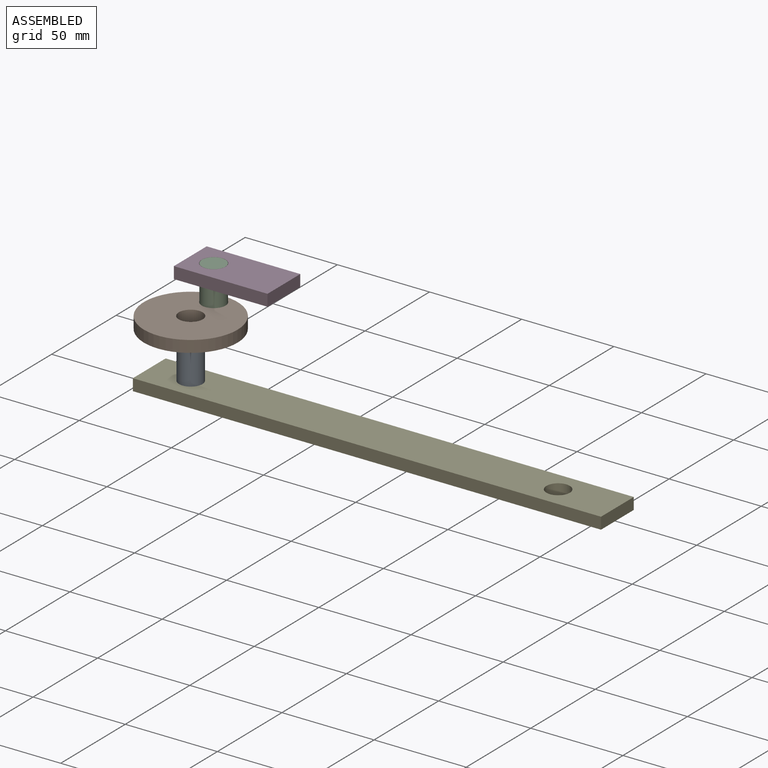
[diagram: assembled view]
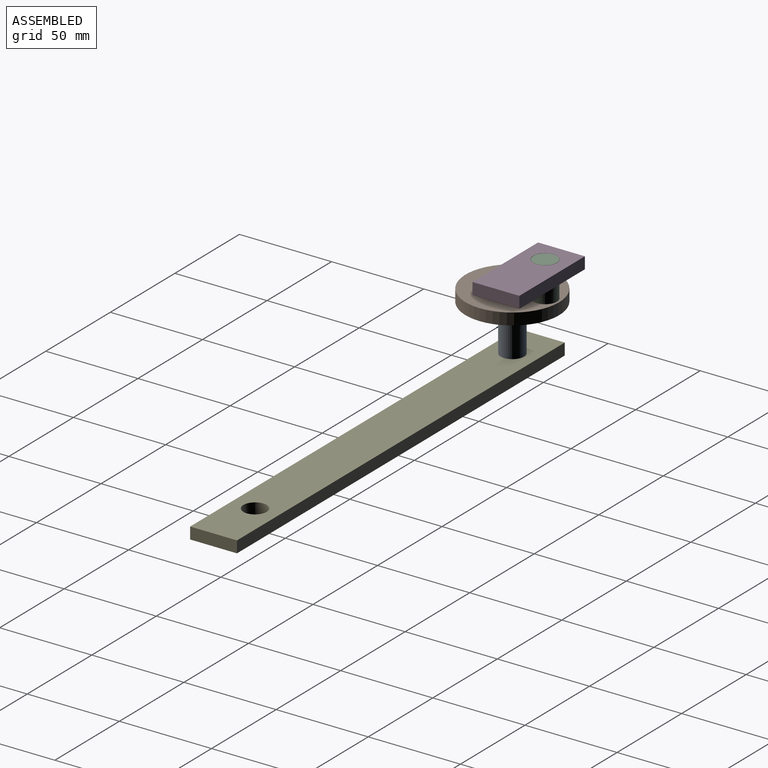
[diagram: assembled view, second angle]
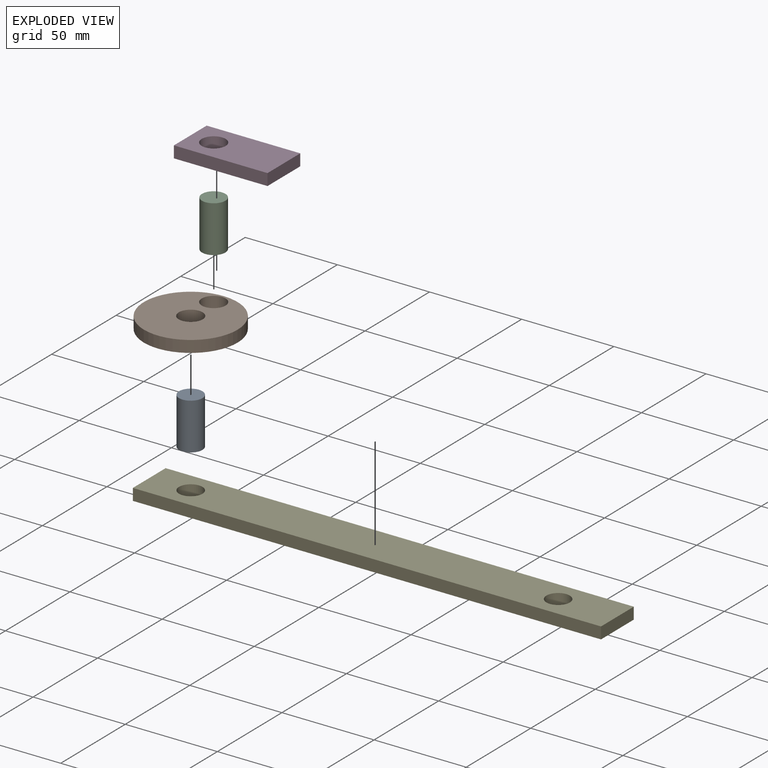
[diagram: exploded view]
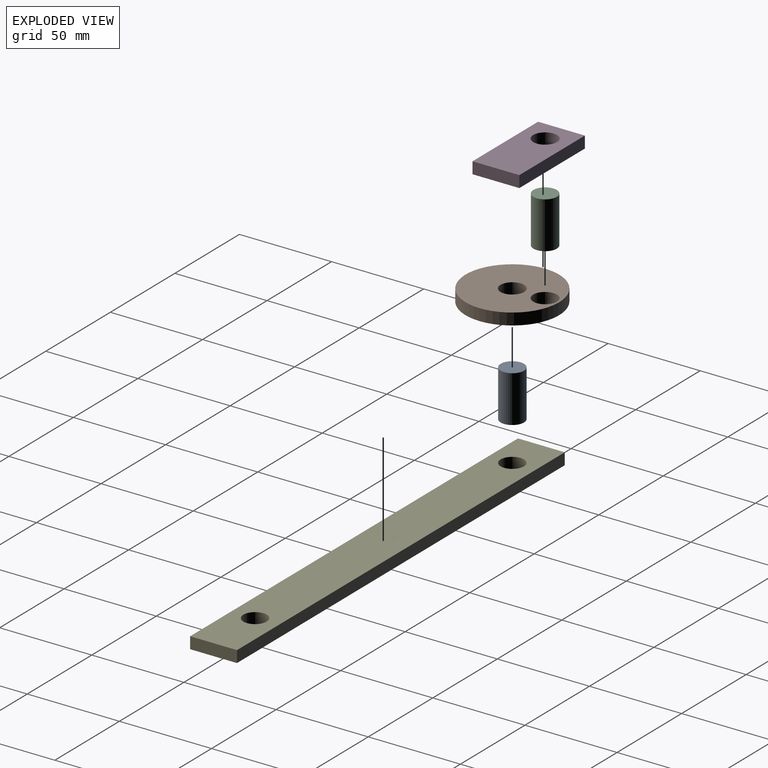
[diagram: exploded view, second angle]
ASSEMBLY  parts=5 mates=4
PART A: 3 faces, bbox 12.7x12.7x25.4 mm
  f0: cylinder r=6.35mm len=25.4mm, axis (0,0,-1), area 1013.4mm2, adj f1,f2
  f1: plane 12.7x12.7mm, normal (0,0,1), area 126.7mm2, adj f0
  f2: plane 12.7x12.7mm, normal (0,0,-1), area 126.7mm2, adj f0
PART B: 5 faces, bbox 50.8x50.8x6.4 mm
  f0: cylinder r=6.48mm len=12.95mm, axis (0,0,-1), area 258.4mm2, adj f3,f4
  f1: cylinder r=6.48mm len=12.95mm, axis (0,0,-1), area 258.4mm2, adj f3,f4
  f2: cylinder r=25.4mm len=50.8mm, axis (0,0,-1), area 1013.4mm2, adj f3,f4
  f3: plane 50.8x50.8mm, normal (0,0,1), area 1763.2mm2, adj f0,f1,f2
  f4: plane 50.8x50.8mm, normal (0,0,-1), area 1763.2mm2, adj f0,f1,f2
PART C: same geometry as A
PART D: 7 faces, bbox 50.8x25.4x6.4 mm
  f0: plane 25.4x6.35mm, normal (1,0,0), area 161.3mm2, adj f1,f3,f5,f6
  f1: plane 50.8x6.35mm, normal (0,1,0), area 322.6mm2, adj f0,f2,f5,f6
  f2: plane 25.4x6.35mm, normal (-1,0,0), area 161.3mm2, adj f1,f3,f5,f6
  f3: plane 50.8x6.35mm, normal (0,-1,0), area 322.6mm2, adj f0,f2,f5,f6
  f4: cylinder r=6.48mm len=12.95mm, axis (0,0,-1), area 258.4mm2, adj f5,f6
  f5: plane 50.8x25.4mm, normal (0,0,1), area 1158.5mm2, adj f0,f1,f2,f3,f4
  f6: plane 50.8x25.4mm, normal (0,0,-1), area 1158.5mm2, adj f0,f1,f2,f3,f4
PART E: 8 faces, bbox 254x25.4x6.4 mm
  f0: plane 25.4x6.35mm, normal (1,0,0), area 161.3mm2, adj f1,f4,f6,f7
  f1: plane 254x6.35mm, normal (0,1,0), area 1612.9mm2, adj f0,f2,f6,f7
  f2: plane 25.4x6.35mm, normal (-1,0,0), area 161.3mm2, adj f1,f4,f6,f7
  f3: cylinder r=6.35mm len=12.7mm, axis (0,0,-1), area 253.4mm2, adj f6,f7
  f4: plane 254x6.35mm, normal (0,-1,0), area 1612.9mm2, adj f0,f2,f6,f7
  f5: cylinder r=6.35mm len=12.7mm, axis (0,0,-1), area 253.4mm2, adj f6,f7
  f6: plane 254x25.4mm, normal (0,0,1), area 6198.2mm2, adj f0,f1,f2,f3,f4,f5
  f7: plane 254x25.4mm, normal (0,0,-1), area 6198.2mm2, adj f0,f1,f2,f3,f4,f5
PLACE A t=(-104.49,0,6.35)mm
PLACE B t=(-104.49,0,31.75)mm
PLACE C t=(-104.49,17.78,31.75)mm
PLACE D t=(-91.79,17.78,50.8)mm
PLACE E at identity
MATE revolute D.f4 <-> C.f0  axis (0,0,1) through (-104.49,17.78,57.15)mm
MATE revolute C.f0 <-> B.f1  axis (0,0,-1) through (-104.49,17.78,31.75)mm
MATE revolute A.f0 <-> E.f3  axis (0,0,-1) through (-104.49,0,6.35)mm
MATE revolute B.f2 <-> A.f0  axis (0,0,-1) through (-104.49,0,31.75)mm
